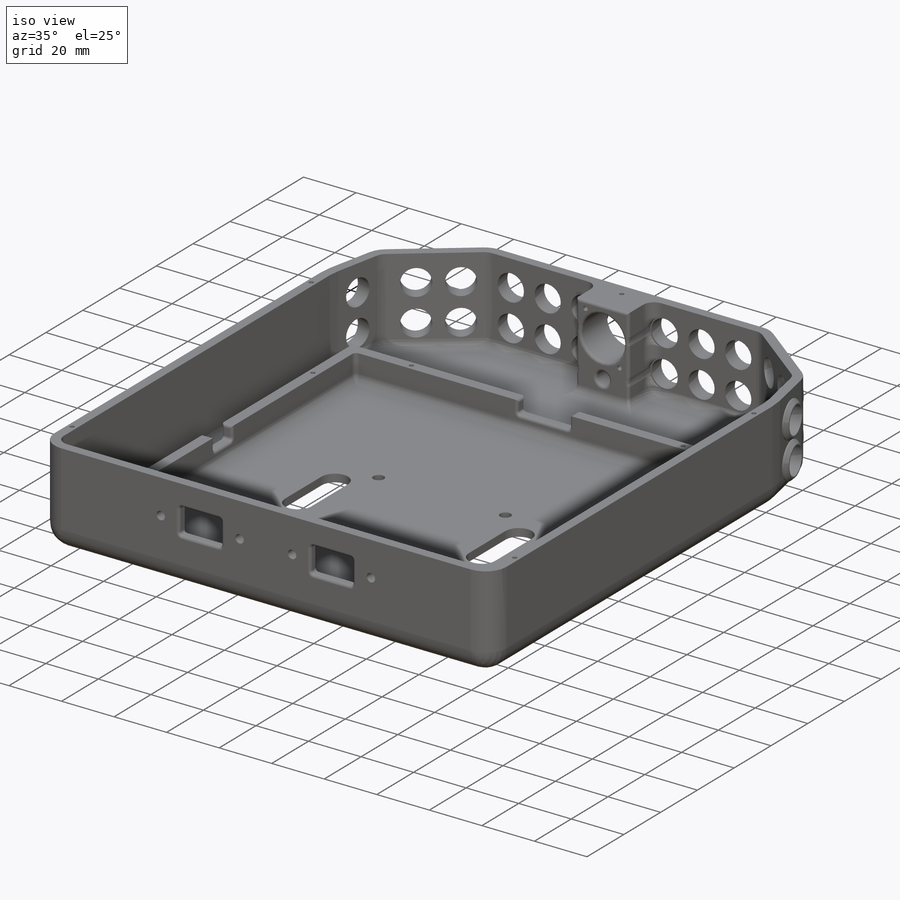
[diagram: iso view]
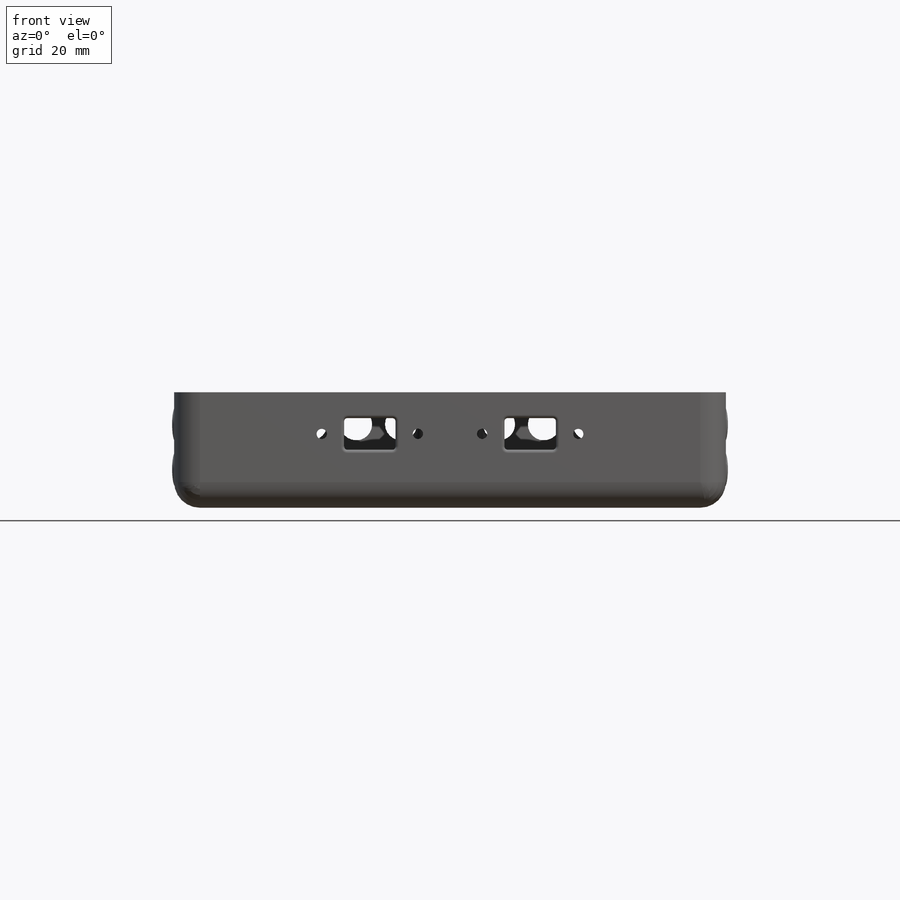
[diagram: front view]
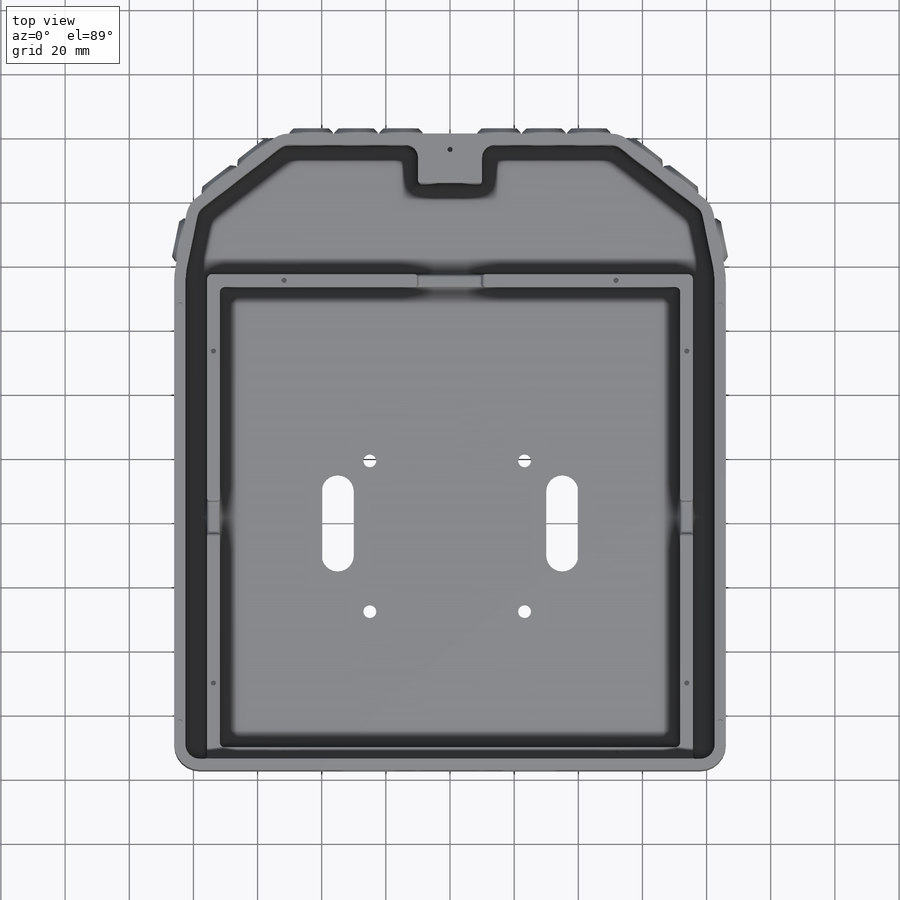
[diagram: top view]
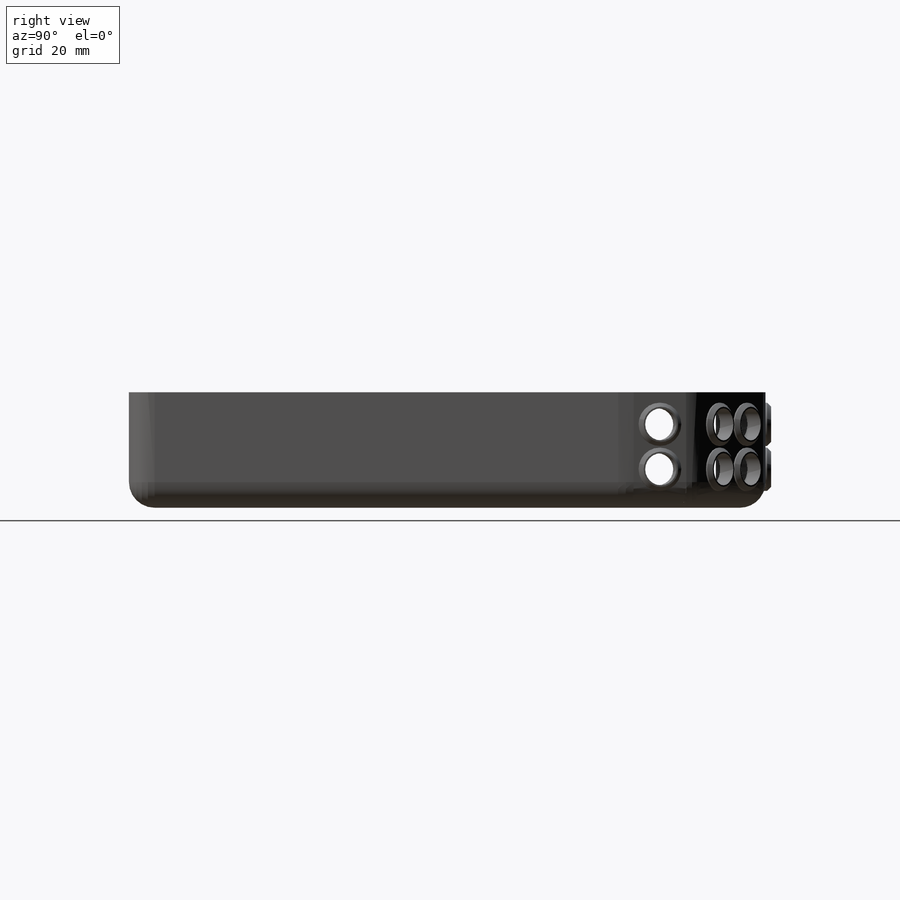
[diagram: right view]
SOLIDWORKS PART (.sldprt)
format: sldprt  version: not decoded by parser v0  size: 1,521,664 bytes
history: native  units: mm
features: sketch x20, fillet x13, cut_extrude x13, extrude x7, material x1, mirror x1, chamfer x1 (+11 scaffold rows collapsed)
feature tree (67):
  scaffold x11  (default folders/planes/origin — collapsed)
  material  "ABS"
  sketch  "Sketch1"  dims[c1.D3=~35.823071mm c1.D6=~115.349557mm c1.D7=~35.823071mm c1.D8=~115.349557mm c2.D7=50.0mm c2.D9=50.0mm c2.D10=50.0mm c2.D1=160.0mm c2.D2=155.0mm c2.D3=25.0mm c2.D4=25.0mm c2.D5=~188.298771mm c3.D1=190.0mm c3.D4=190.0mm c3.D5=86.0mm c3.D6=~113.137085mm c3.D7=90.0deg c3.D8=30.0deg c3.D10=270.0deg c3.D3=~5.729498mm c4.D3=~191.676257deg c4.D4=~33.022701mm c5.D4=200.0deg c5.D6=36.0mm c5.D1=22.0mm c6.D6=36.0mm c6.D4=53.0mm]
  extrude  "Boss-Extrude1"  Depth=36mm
  fillet  "Fillet4"  Radius=8mm
  fillet  "Fillet5"  Radius=24mm
  fillet  "Fillet6"  Radius=8mm
  fillet  "Fillet7"  Radius=8mm
  sketch  "Sketch2"  dims[c1.D1=10.0mm c1.D6=16.5mm c1.D9=5.0mm c1.D2=7.0mm c1.D3=10.0mm c1.D7=21.0mm c1.D8=14.0mm c2.D9=21.0mm c2.D8=14.0mm c2.D10=14.0mm c2.D11=11.25mm c3.D8=14.0mm c3.D4=3.0 c3.D5=2.0]
  cut_extrude  "Cut-Extrude1"  Depth=20mm
  sketch  "Sketch3"  dims[D1=10.0mm D2=10.0mm D3=7.0mm D6=21.0mm D7=14.0mm D4=3.0 D5=2.0]
  cut_extrude  "Cut-Extrude2"  Depth=10mm
  sketch  "Sketch4"  dims[c1.D1=10.0mm c1.D3=12.0mm c1.D2=10.0mm c1.D4=14.0mm c2.D3=2.0]
  cut_extrude  "Cut-Extrude3"  Depth=10mm
  mirror  "Mirror2"
  fillet  "Fillet3"  Radius=8mm
  sketch  "Sketch5"  dims[c1.D2=12.0mm c1.D3=20.0mm c2.D2=15.5mm c2.D1=3.5mm]
  cut_extrude  "Cut-Extrude4"  Depth=3mm
  sketch  "Sketch8"  dims[D1=151.5mm D2=151.5mm D3=4.0mm]
  extrude  "Boss-Extrude2"  Depth=10mm
  fillet  "Fillet22"  Radius=1.5mm
  sketch  "Sketch6"  dims[D1=11.0mm]
  fillet  "Fillet12"  Radius=3mm
  fillet  "Fillet23"  Radius=4mm
  fillet  "Fillet14"  Radius=3.5mm
  fillet  "Fillet21"  Radius=1.5mm
  cut_extrude  "Cut-Extrude5"  [1 undecoded]
  fillet  "Fillet10"  Radius=1mm
  sketch  "Sketch9"  dims[D1=10.0mm D2=5.0mm]
  cut_extrude  "Cut-Extrude7"  [1 undecoded]
  sketch  "Sketch10"  dims[D1=20.0mm D2=5.0mm]
  cut_extrude  "Cut-Extrude8"  [1 undecoded]
  sketch  "Sketch11"  dims[D1=10.0mm D2=5.0mm]
  cut_extrude  "Cut-Extrude9"  [1 undecoded]
  fillet  "Fillet19"  Radius=1mm
  sketch  "Sketch12"  dims[c1.D1=4.0mm c1.D9=5.0mm c1.D2=25.0mm c1.D3=50.0mm c1.D6=~45.49375mm c1.D7=50.9875mm c1.D8=10.0mm c2.D9=20.0mm c2.D10=30.0mm c2.D11=10.0mm c2.D3=50.0mm c2.D4=2.0 c2.D5=2.0]
  cut_extrude  "Cut-Extrude10"  [1 undecoded]
  sketch  "Sketch14"  dims[c1.D2=13.5mm c1.D3=10.0mm c2.D2=13.5mm c2.D1=1.75mm]
  extrude  "Boss-Extrude3"  Depth=1.75mm
  sketch  "Sketch15"  dims[c1.D2=10.0mm c1.D3=13.5mm c2.D2=10.0mm c2.D1=1.75mm]
  extrude  "Boss-Extrude4"  Depth=1.75mm
  sketch  "Sketch16"  dims[c1.D2=10.0mm c1.D3=13.5mm c2.D2=10.0mm c2.D1=1.75mm]
  extrude  "Boss-Extrude5"  Depth=1.75mm
  sketch  "Sketch17"  dims[c1.D2=10.0mm c1.D3=13.5mm c2.D2=10.0mm c2.D1=1.75mm]
  extrude  "Boss-Extrude6"  Depth=1.75mm
  sketch  "Sketch18"  dims[c1.D2=10.0mm c1.D3=13.5mm c2.D2=10.0mm c2.D1=1.75mm]
  extrude  "Boss-Extrude7"  Depth=1.75mm
  chamfer  "Chamfer1"  Distance=1.25mm Angle=45deg
  sketch  "Sketch19"  dims[c1.D1=3.2mm c1.D2=9.9mm c1.D3=16.0mm c1.D4=30.0mm c1.D5=30.0mm c1.D6=15.0mm c1.D7=15.0mm c1.D8=15.0mm c1.D9=10.0mm c1.D10=10.0mm c2.D8=13.0mm]
  cut_extrude  "Cut-Extrude11"  [1 undecoded]
  fillet  "Fillet24"  Radius=1mm
  sketch  "Sketch20"  dims[D1=1.6mm D2=15.0mm D3=1.75mm D4=130.0mm D5=1.75mm D6=5.0mm]
  cut_extrude  "Cut-Extrude12"  Depth=8.5mm
  sketch  "Sketch21"  dims[c1.D1=1.6mm c1.D2=17.0mm c1.D3=12.96mm c1.D4=6.48mm c1.D5=8.5mm c2.D3=12.96mm c2.D4=6.48mm]
  cut_extrude  "Cut-Extrude13"  Depth=10mm
  sketch  "Sketch22"  dims[D7=1.6mm D1=147.6mm D2=73.8mm D3=147.6mm D4=73.8mm D5=103.5mm D6=51.75mm D8=103.5mm D9=51.75mm]
  cut_extrude  "Cut-Extrude14"  Depth=7mm
decode coverage: 48 of 55 modeling features carry decoded parameters
note: ~ marks probable driven/reference dimensions
note: 6 parameter values undecoded
summary: no parameter record found for 6 features
note: suppression state not decoded; provenance and decode notes live in map.json
